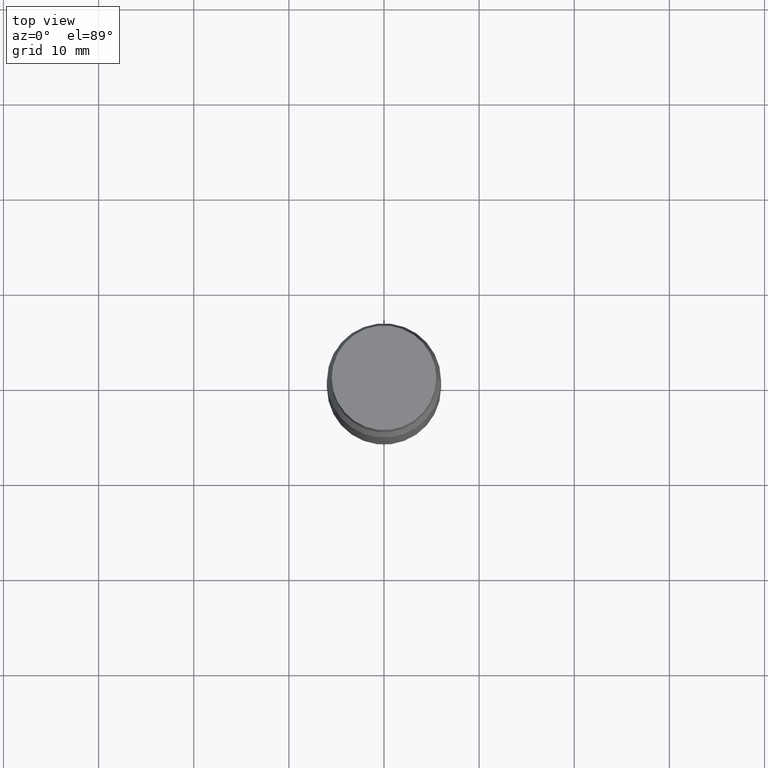
[diagram: clean part render]
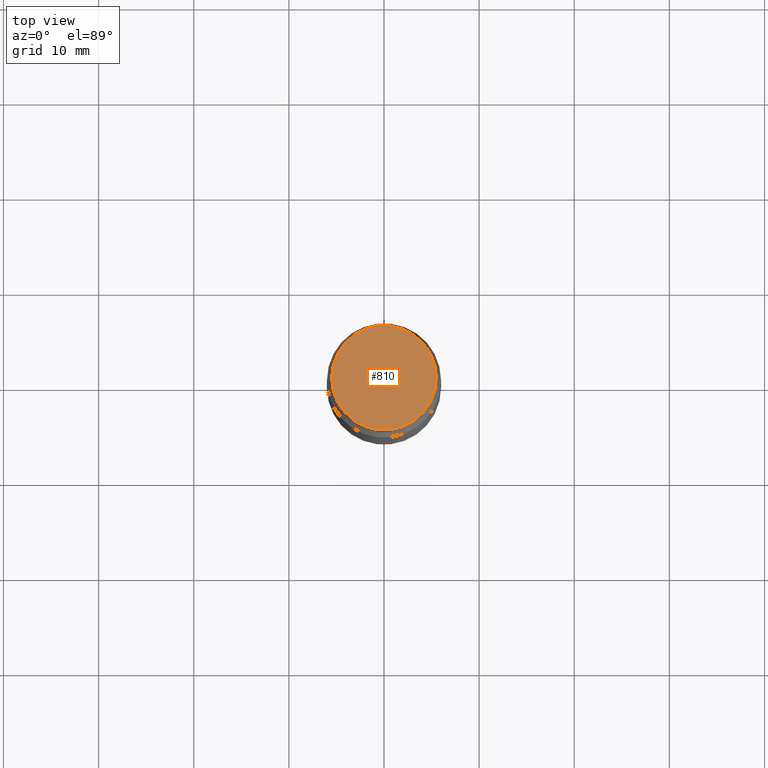
[diagram: same view with one face highlighted and labeled with its STEP entity id]
A machine part, top view. The second image highlights one B-rep face of the part: STEP entity #810.
In plain terms, the highlighted planar face has unit normal (-0, -0, -1).
Its self-contained STEP definition (entity closure, byte-faithful):
#1 = DIRECTION ( 'NONE',  ( -2.438088387897959208E-29, -3.491805094961123683E-15, -1.000000000000000000 ) ) ;
#44 = VERTEX_POINT ( 'NONE', #207 ) ;
#81 = CIRCLE ( 'NONE', #650, 0.2165500000000000758 ) ;
#131 = EDGE_CURVE ( 'NONE', #44, #258, #81, .T. ) ;
#184 = FACE_OUTER_BOUND ( 'NONE', #666, .T. ) ;
#204 = CARTESIAN_POINT ( 'NONE',  ( 0.2165500000000000758, -1.511682574320374511E-15, 5.463695987328526437E-16 ) ) ;
#207 = CARTESIAN_POINT ( 'NONE',  ( -0.2165500000000000758, 5.237773507787245229E-16, 5.463695987328561936E-16 ) ) ;
#243 = ORIENTED_EDGE ( 'NONE', *, *, #839, .T. ) ;
#258 = VERTEX_POINT ( 'NONE', #204 ) ;
#312 = DIRECTION ( 'NONE',  ( 1.000000000000000000, -6.982962677686265922E-15, 2.260776888683160832E-33 ) ) ;
#360 = ORIENTED_EDGE ( 'NONE', *, *, #131, .T. ) ;
#394 = AXIS2_PLACEMENT_3D ( 'NONE', #871, #424, #712 ) ;
#424 = DIRECTION ( 'NONE',  ( 2.445468806185136597E-29, 3.491805094961124077E-15, 1.000000000000000000 ) ) ;
#492 = CARTESIAN_POINT ( 'NONE',  ( 7.273937522778347805E-29, 7.631576371586486611E-17, 5.463695987328526437E-16 ) ) ;
#586 = AXIS2_PLACEMENT_3D ( 'NONE', #492, #1, #312 ) ;
#650 = AXIS2_PLACEMENT_3D ( 'NONE', #677, #761, #683 ) ;
#666 = EDGE_LOOP ( 'NONE', ( #243, #360 ) ) ;
#677 = CARTESIAN_POINT ( 'NONE',  ( 7.220980290903470182E-29, 4.779935325870401828E-19, 5.463695987328526437E-16 ) ) ;
#682 = CIRCLE ( 'NONE', #394, 0.2165500000000000758 ) ;
#683 = DIRECTION ( 'NONE',  ( 1.000000000000000000, -6.982962677686266711E-15, 0.000000000000000000 ) ) ;
#712 = DIRECTION ( 'NONE',  ( 1.000000000000000000, -6.982962677686266711E-15, 0.000000000000000000 ) ) ;
#761 = DIRECTION ( 'NONE',  ( 2.445468806185136597E-29, 3.491805094961124077E-15, 1.000000000000000000 ) ) ;
#810 = ADVANCED_FACE ( 'NONE', ( #184 ), #908, .F. ) ;
#839 = EDGE_CURVE ( 'NONE', #258, #44, #682, .T. ) ;
#871 = CARTESIAN_POINT ( 'NONE',  ( 7.220980290903470182E-29, 4.779935325870401828E-19, 5.463695987328526437E-16 ) ) ;
#908 = PLANE ( 'NONE',  #586 ) ;